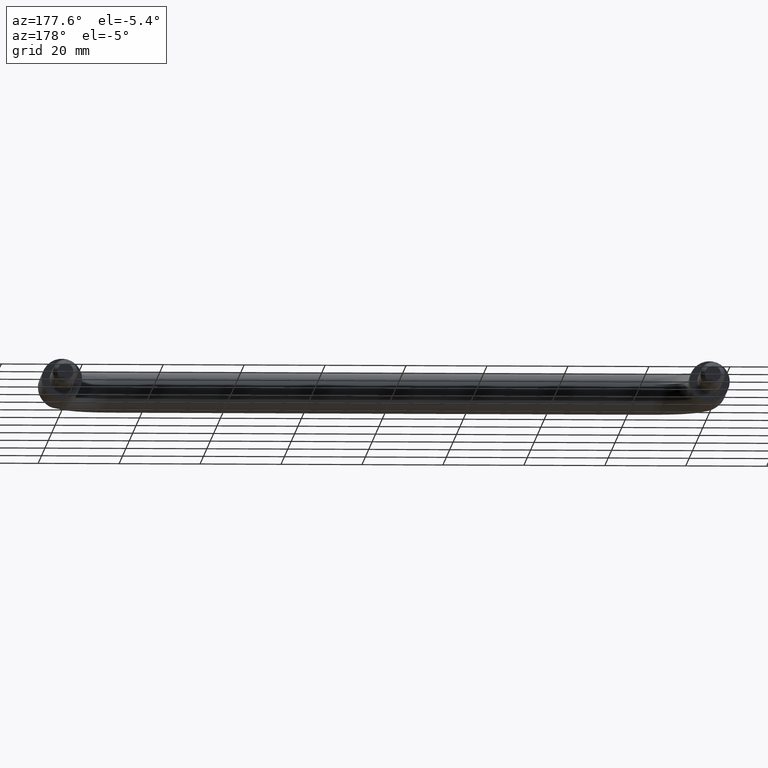
[diagram: clean part render]
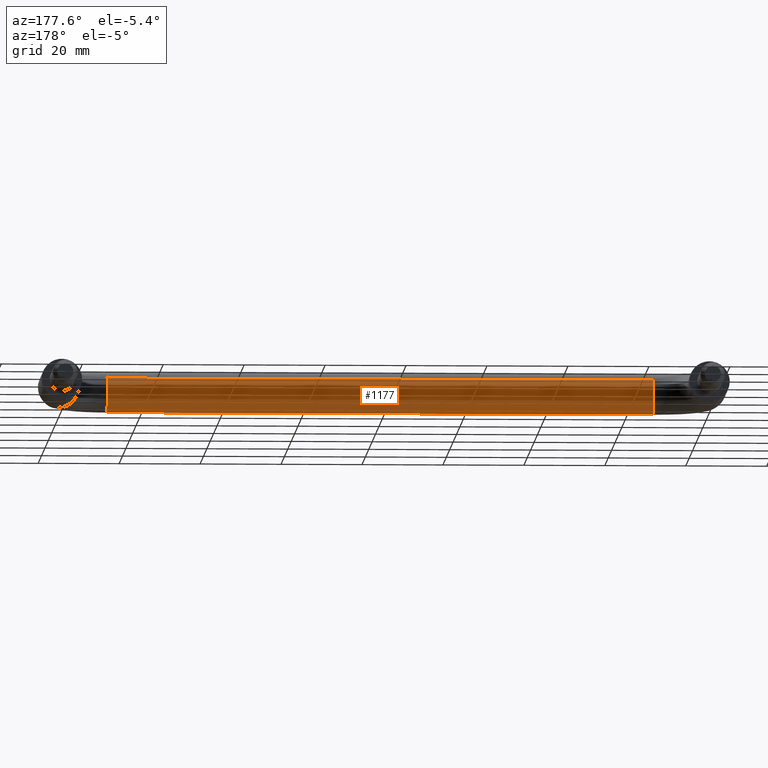
[diagram: same view with one face highlighted and labeled with its STEP entity id]
A machine part, auxiliary view. The second image highlights one B-rep face of the part: STEP entity #1177.
In plain terms, the highlighted face is a freeform B-spline surface patch.
Its self-contained STEP definition (entity closure, byte-faithful):
#954=CARTESIAN_POINT('',(147.500000000000000,-31.182221785298410,3.228710191911005));
#955=VERTEX_POINT('',#954);
#973=CARTESIAN_POINT('',(12.500000000006970,-31.182216886848611,3.228704399729181));
#974=VERTEX_POINT('',#973);
#975=CARTESIAN_POINT('',(12.500000000006970,-31.182216886848611,3.228704399729181));
#976=CARTESIAN_POINT('',(147.500000000000000,-31.182221785298410,3.228710191911005));
#977=QUASI_UNIFORM_CURVE('',1,(#975,#976),.UNSPECIFIED.,.F.,.U.);
#978=EDGE_CURVE('',#974,#955,#977,.T.);
#997=CARTESIAN_POINT('',(12.500000000000000,-38.626872194420599,-3.441772520858758));
#998=VERTEX_POINT('',#997);
#1012=CARTESIAN_POINT('',(147.500000000000000,-38.626872198659441,-3.441772516391942));
#1013=VERTEX_POINT('',#1012);
#1014=CARTESIAN_POINT('',(12.500000000000000,-38.626872194420599,-3.441772520858758));
#1015=CARTESIAN_POINT('',(147.500000000000000,-38.626872198659441,-3.441772516391942));
#1016=QUASI_UNIFORM_CURVE('',1,(#1014,#1015),.UNSPECIFIED.,.F.,.U.);
#1017=EDGE_CURVE('',#998,#1013,#1016,.T.);
#1050=CARTESIAN_POINT('',(9.124999999932093,-38.626871855061438,-3.441772878468769));
#1051=CARTESIAN_POINT('',(9.124999999932093,-35.185098976592663,-7.068644733530205));
#1052=CARTESIAN_POINT('',(9.124999999932093,-31.558227121531232,-3.626871855061437));
#1053=CARTESIAN_POINT('',(9.124999999932093,-28.133178209124662,-0.376621797922258));
#1054=CARTESIAN_POINT('',(9.124999999932095,-31.182221785297674,3.228710191910127));
#1055=CARTESIAN_POINT('',(150.959375002785690,-38.626871855061417,-3.441772878468769));
#1056=CARTESIAN_POINT('',(150.959375002785750,-35.185098976592649,-7.068644733530205));
#1057=CARTESIAN_POINT('',(150.959375002785690,-31.558227121531221,-3.626871855061437));
#1058=CARTESIAN_POINT('',(150.959375002785720,-28.133178209124633,-0.376621797922258));
#1059=CARTESIAN_POINT('',(150.959375002785750,-31.182221785297664,3.228710191910127));
#1067=(BOUNDED_SURFACE()B_SPLINE_SURFACE(2,1,((#1050,#1055),(#1051,#1056),(#1052,#1057),(#1053,#1058),(#1054,#1059)),.UNSPECIFIED.,.F.,.F.,.U.)B_SPLINE_SURFACE_WITH_KNOTS((3,2,3),(2,2),(0.0,8.284271247461899,16.237171645025320),(0.0,141.834375002853590),.UNSPECIFIED.)GEOMETRIC_REPRESENTATION_ITEM()RATIONAL_B_SPLINE_SURFACE(((1.0,1.0),(0.707106781186548,0.707106781186548),(1.0,1.0),(0.718822509939086,0.718822509939086),(0.977505800795127,0.977505800795127)))REPRESENTATION_ITEM('')SURFACE());
#1068=CARTESIAN_POINT('',(147.500000000000000,-30.0,0.0));
#1069=VERTEX_POINT('',#1068);
#1070=CARTESIAN_POINT('',(147.500000000000000,-30.0,0.0));
#1071=CARTESIAN_POINT('',(147.499999999999970,-30.000000000000014,1.830795759032039));
#1072=CARTESIAN_POINT('',(147.500000000000030,-31.182221785298420,3.228710191911005));
#1080=(BOUNDED_CURVE()B_SPLINE_CURVE(2,(#1070,#1071,#1072),.UNSPECIFIED.,.F.,.U.)B_SPLINE_CURVE_WITH_KNOTS((3,3),(0.500000000000000,0.612408089723808),.UNSPECIFIED.)CURVE()GEOMETRIC_REPRESENTATION_ITEM()RATIONAL_B_SPLINE_CURVE((1.0,0.868305731120490,0.855039471779534))REPRESENTATION_ITEM(''));
#1081=EDGE_CURVE('',#1069,#955,#1080,.T.);
#1082=ORIENTED_EDGE('',*,*,#1081,.F.);
#1083=CARTESIAN_POINT('',(147.500000001367910,-34.937169798597438,-4.999605220994123));
#1084=VERTEX_POINT('',#1083);
#1085=CARTESIAN_POINT('',(147.500000001367910,-34.937169798597438,-4.999605220994124));
#1086=CARTESIAN_POINT('',(147.500000000000030,-30.000000000000007,-4.937559645613943));
#1087=CARTESIAN_POINT('',(147.500000000000000,-30.0,0.0));
#1095=(BOUNDED_CURVE()B_SPLINE_CURVE(2,(#1085,#1086,#1087),.UNSPECIFIED.,.F.,.U.)B_SPLINE_CURVE_WITH_KNOTS((3,3),(0.252215704217978,0.500000000000000),.UNSPECIFIED.)CURVE()GEOMETRIC_REPRESENTATION_ITEM()RATIONAL_B_SPLINE_CURVE((0.994854295322463,0.709702640147916,1.0))REPRESENTATION_ITEM(''));
#1096=EDGE_CURVE('',#1084,#1069,#1095,.T.);
#1097=ORIENTED_EDGE('',*,*,#1096,.F.);
#1098=CARTESIAN_POINT('',(147.499999999999970,-38.626872198659449,-3.441772516391941));
#1099=CARTESIAN_POINT('',(147.500000000000060,-37.148170121130043,-5.000000000000001));
#1100=CARTESIAN_POINT('',(147.500000000000000,-35.0,-5.0));
#1101=CARTESIAN_POINT('',(147.500000000000000,-34.968583658054513,-5.0));
#1102=CARTESIAN_POINT('',(147.500000001367910,-34.937169798597438,-4.999605220994124));
#1110=(BOUNDED_CURVE()B_SPLINE_CURVE(2,(#1098,#1099,#1100,#1101,#1102),.UNSPECIFIED.,.F.,.U.)B_SPLINE_CURVE_WITH_KNOTS((3,2,3),(0.121049496527031,0.250000000000000,0.252215704217978),.UNSPECIFIED.)CURVE()GEOMETRIC_REPRESENTATION_ITEM()RATIONAL_B_SPLINE_CURVE((0.853699663600792,0.848925087880748,1.0,0.997404141038632,0.994854295322463))REPRESENTATION_ITEM(''));
#1111=EDGE_CURVE('',#1013,#1084,#1110,.T.);
#1112=ORIENTED_EDGE('',*,*,#1111,.F.);
#1113=ORIENTED_EDGE('',*,*,#1017,.F.);
#1114=CARTESIAN_POINT('',(12.500000000970360,-33.191768631769513,-4.661576913336010));
#1115=VERTEX_POINT('',#1114);
#1116=CARTESIAN_POINT('',(12.500000000000005,-38.626872194420599,-3.441772520858758));
#1117=CARTESIAN_POINT('',(12.499999999999998,-37.148170113835420,-5.0));
#1118=CARTESIAN_POINT('',(12.500000000000000,-35.0,-5.0));
#1119=CARTESIAN_POINT('',(12.500000000000005,-34.064215197122188,-5.0));
#1120=CARTESIAN_POINT('',(12.500000000970365,-33.191768631769520,-4.661576913336010));
#1128=(BOUNDED_CURVE()B_SPLINE_CURVE(2,(#1116,#1117,#1118,#1119,#1120),.UNSPECIFIED.,.F.,.U.)B_SPLINE_CURVE_WITH_KNOTS((3,2,3),(0.121049496898760,0.250000000000000,0.311409344367956),.UNSPECIFIED.)CURVE()GEOMETRIC_REPRESENTATION_ITEM()RATIONAL_B_SPLINE_CURVE((0.853699663573264,0.848925088316254,1.0,0.928054477851383,0.891453974465620))REPRESENTATION_ITEM(''));
#1129=EDGE_CURVE('',#998,#1115,#1128,.T.);
#1130=ORIENTED_EDGE('',*,*,#1129,.T.);
#1131=CARTESIAN_POINT('',(12.500000000000000,-30.0,0.0));
#1132=VERTEX_POINT('',#1131);
#1133=CARTESIAN_POINT('',(12.500000000970360,-33.191768631769513,-4.661576913336010));
#1134=CARTESIAN_POINT('',(12.500000000000000,-30.000000000000004,-3.423485968655530));
#1135=CARTESIAN_POINT('',(12.500000000000000,-30.0,0.0));
#1143=(BOUNDED_CURVE()B_SPLINE_CURVE(2,(#1133,#1134,#1135),.UNSPECIFIED.,.F.,.U.)B_SPLINE_CURVE_WITH_KNOTS((3,3),(0.311409344367956,0.500000000000000),.UNSPECIFIED.)CURVE()GEOMETRIC_REPRESENTATION_ITEM()RATIONAL_B_SPLINE_CURVE((0.891453974465620,0.779052303335165,1.0))REPRESENTATION_ITEM(''));
#1144=EDGE_CURVE('',#1115,#1132,#1143,.T.);
#1145=ORIENTED_EDGE('',*,*,#1144,.T.);
#1146=CARTESIAN_POINT('',(12.500000000011530,-30.449470146599229,2.071877905019577));
#1147=VERTEX_POINT('',#1146);
#1148=CARTESIAN_POINT('',(12.500000000000000,-30.0,0.0));
#1149=CARTESIAN_POINT('',(12.500000000000004,-30.000000000000007,1.084692648932033));
#1150=CARTESIAN_POINT('',(12.500000000011527,-30.449470146599225,2.071877905019577));
#1158=(BOUNDED_CURVE()B_SPLINE_CURVE(2,(#1148,#1149,#1150),.UNSPECIFIED.,.F.,.U.)B_SPLINE_CURVE_WITH_KNOTS((3,3),(0.500000000000000,0.570375489961712),.UNSPECIFIED.)CURVE()GEOMETRIC_REPRESENTATION_ITEM()RATIONAL_B_SPLINE_CURVE((1.0,0.917549984878162,0.881519651448723))REPRESENTATION_ITEM(''));
#1159=EDGE_CURVE('',#1132,#1147,#1158,.T.);
#1160=ORIENTED_EDGE('',*,*,#1159,.T.);
#1161=CARTESIAN_POINT('',(12.500000000011521,-30.449470146599221,2.071877905019577));
#1162=CARTESIAN_POINT('',(12.500000000009047,-30.735884297693200,2.700938209100045));
#1163=CARTESIAN_POINT('',(12.500000000006976,-31.182216886848611,3.228704399729182));
#1171=(BOUNDED_CURVE()B_SPLINE_CURVE(2,(#1161,#1162,#1163),.UNSPECIFIED.,.F.,.U.)B_SPLINE_CURVE_WITH_KNOTS((3,3),(0.570375489961713,0.612407860404824),.UNSPECIFIED.)CURVE()GEOMETRIC_REPRESENTATION_ITEM()RATIONAL_B_SPLINE_CURVE((0.881519651448722,0.860000222984083,0.855039525907895))REPRESENTATION_ITEM(''));
#1172=EDGE_CURVE('',#1147,#974,#1171,.T.);
#1173=ORIENTED_EDGE('',*,*,#1172,.T.);
#1174=ORIENTED_EDGE('',*,*,#978,.T.);
#1175=EDGE_LOOP('',(#1082,#1097,#1112,#1113,#1130,#1145,#1160,#1173,#1174));
#1176=FACE_OUTER_BOUND('',#1175,.T.);
#1177=ADVANCED_FACE('',(#1176),#1067,.T.);